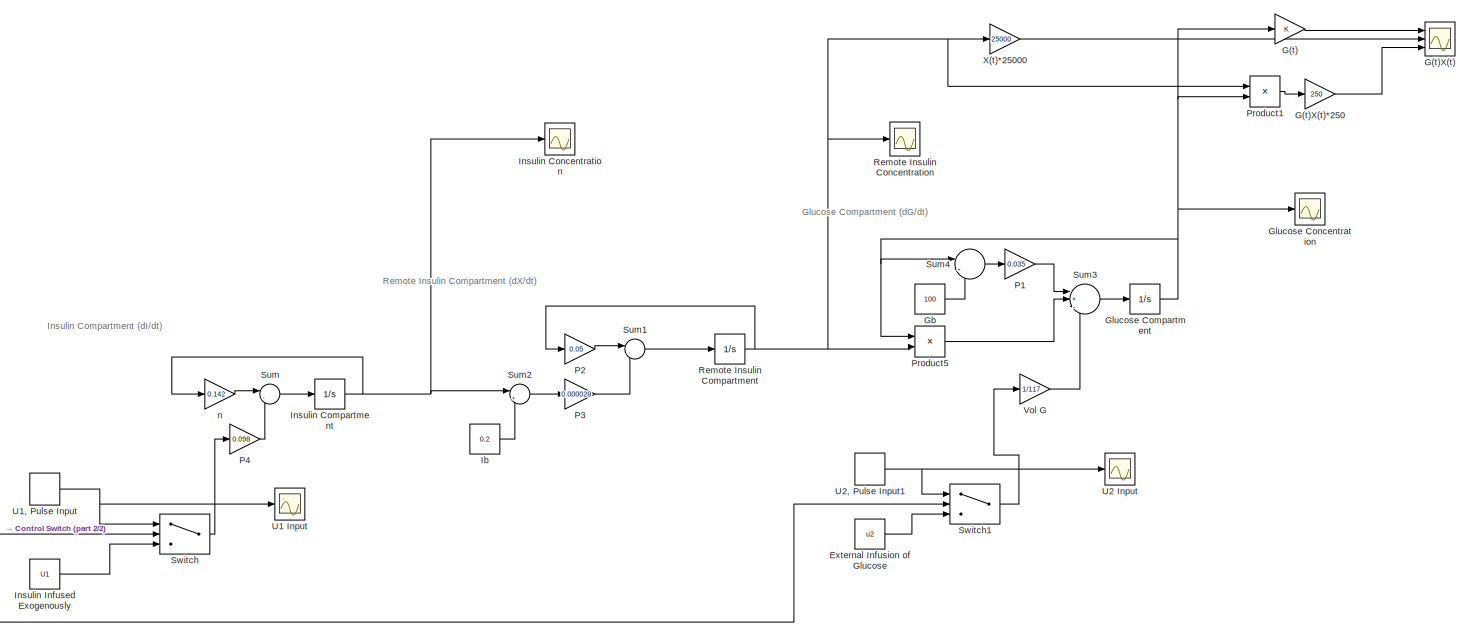
[diagram: root canvas - part 1/2, most of the canvas]
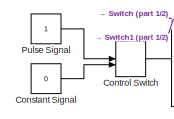
[diagram: root canvas - part 2/2, bottom left region]
MODEL slx_1c3f9f1a08b3
KIND model
CONFIG AbsTol = auto
CONFIG EnableMultiTasking = off
CONFIG FixedStep = auto
CONFIG MaxStep = auto
CONFIG MinStep = auto
CONFIG RelTol = 1e-3
CONFIG SampleTimeConstraint = Unconstrained
CONFIG SolverName = VariableStepAuto
CONFIG StartTime = 0.0
CONFIG StopTime = 1000
WORKSPACE source: mxarray member
WORKSPACE U1 = 10
WORKSPACE u2 = 100
BLOCK [Constant] Constant Signal
  Value = 0
BLOCK [ManualSwitch] Control Switch
BLOCK [Constant] External Infusion of Glucose
  Value = u2
BLOCK [Gain] G(t)
BLOCK [Scope] G(t)X(t)
  Floating = off
  NumInputPorts = 3
  Ports = [3]
  ScopeSpecificationString = Simulink.scopes.TimeScopeBlockCfg('CurrentConfiguration', extmgr.ConfigurationSet(extmgr.Configuration('Core','General UI',true),extmgr.Configuration('Core','Source UI',true),extmgr.Configuration('Sources','WiredSimulink',true,'DataLoggingVariableName','ScopeData3'),extmgr.Configuration('Visuals','Time Domain',true,'SerializedDisplays',{struct('MinYLimReal','-16.06376','MaxYLimReal','116.52899','Y...<+1615ch>
BLOCK [Gain] G(t)X(t)*250
  Gain = 250
BLOCK [Constant] Gb
  NameLocation = top
  Value = 100
BLOCK [Integrator] Glucose Compartment
  InitialCondition = 100
  Ports = [1, 1]
BLOCK [Scope] Glucose Concentration
  Floating = off
  NumInputPorts = 1
  Ports = [1]
  ScopeSpecificationString = Simulink.scopes.TimeScopeBlockCfg('CurrentConfiguration', extmgr.ConfigurationSet(extmgr.Configuration('Core','General UI',true),extmgr.Configuration('Core','Source UI',true),extmgr.Configuration('Sources','WiredSimulink',true,'DataLoggingVariableName','ScopeData1'),extmgr.Configuration('Visuals','Time Domain',true,'SerializedDisplays',{struct('MinYLimReal','99.33253','MaxYLimReal','103.99235','YL...<+1827ch>
BLOCK [Constant] Ib
  Value = 0.2
BLOCK [Integrator] Insulin Compartment
  Ports = [1, 1]
BLOCK [Scope] Insulin Concentration
  Floating = off
  NumInputPorts = 1
  Ports = [1]
  ScopeSpecificationString = Simulink.scopes.TimeScopeBlockCfg('CurrentConfiguration', extmgr.ConfigurationSet(extmgr.Configuration('Core','General UI',true),extmgr.Configuration('Core','Source UI',true),extmgr.Configuration('Sources','WiredSimulink',true,'DataLoggingVariableName','ScopeData2'),extmgr.Configuration('Visuals','Time Domain',true,'SerializedDisplays',{struct('MinYLimReal','-0.86268','MaxYLimReal','7.76408','YLab...<+1824ch>
BLOCK [Constant] Insulin Infused Exogenously
  NameLocation = top
  OutMax = 1000
  OutMin = 0
  Value = U1
BLOCK [Gain] P1
  Gain = 0.035
BLOCK [Gain] P2
  Gain = 0.05
BLOCK [Gain] P3
  Gain = 0.000028
BLOCK [Gain] P4
  Gain = 0.098
BLOCK [Product] Product1
  Ports = [2, 1]
BLOCK [Product] Product5
  Ports = [2, 1]
BLOCK [Constant] Pulse Signal
BLOCK [Integrator] Remote Insulin Compartment
  Ports = [1, 1]
BLOCK [Scope] Remote Insulin Concentration
  Floating = off
  NumInputPorts = 1
  Ports = [1]
  ScopeSpecificationString = Simulink.scopes.TimeScopeBlockCfg('CurrentConfiguration', extmgr.ConfigurationSet(extmgr.Configuration('Core','General UI',true),extmgr.Configuration('Core','Source UI',true),extmgr.Configuration('Sources','WiredSimulink',true,'DataLoggingVariableName','ScopeData3'),extmgr.Configuration('Visuals','Time Domain',true,'SerializedDisplays',{struct('MinYLimReal','-0.00047','MaxYLimReal','0.00422','YLab...<+1521ch>
BLOCK [Sum] Sum
  Inputs = |-+
  Ports = [2, 1]
BLOCK [Sum] Sum1
  Inputs = |-+
  Ports = [2, 1]
BLOCK [Sum] Sum2
  Inputs = |+-
  Ports = [2, 1]
BLOCK [Sum] Sum3
  Inputs = |+-+
  Ports = [3, 1]
BLOCK [Sum] Sum4
  Inputs = |-+
  Ports = [2, 1]
BLOCK [Switch] Switch
  Criteria = u2 > Threshold
  InputSameDT = off
  SaturateOnIntegerOverflow = off
BLOCK [Switch] Switch1
  Criteria = u2 > Threshold
  InputSameDT = off
  SaturateOnIntegerOverflow = off
BLOCK [Scope] U1 Input
  Floating = off
  NumInputPorts = 1
  Ports = [1]
  ScopeSpecificationString = Simulink.scopes.TimeScopeBlockCfg('CurrentConfiguration', extmgr.ConfigurationSet(extmgr.Configuration('Core','General UI',true),extmgr.Configuration('Core','Source UI',true),extmgr.Configuration('Sources','WiredSimulink',true,'DataLoggingVariableName','ScopeData1'),extmgr.Configuration('Visuals','Time Domain',true,'SerializedDisplays',{struct('MinYLimReal','-1.25','MaxYLimReal','11.25','YLabelRea...<+1766ch>
BLOCK [DiscretePulseGenerator] U1, Pulse Input
  Amplitude = 10
  Period = 1000
  Ports = [0, 1]
  PulseType = Time based
  PulseWidth = .5
BLOCK [Scope] U2 Input
  Floating = off
  NumInputPorts = 1
  Ports = [1]
  ScopeSpecificationString = Simulink.scopes.TimeScopeBlockCfg('CurrentConfiguration', extmgr.ConfigurationSet(extmgr.Configuration('Core','General UI',true),extmgr.Configuration('Core','Source UI',true),extmgr.Configuration('Sources','WiredSimulink',true,'DataLoggingVariableName','ScopeData2'),extmgr.Configuration('Visuals','Time Domain',true,'SerializedDisplays',{struct('MinYLimReal','-12.5','MaxYLimReal','112.5','YLabelRea...<+1797ch>
BLOCK [DiscretePulseGenerator] U2, Pulse Input1
  Amplitude = 100
  Period = 1000
  PhaseDelay = 10
  Ports = [0, 1]
  PulseType = Time based
  PulseWidth = .5
BLOCK [Gain] Vol G
  Gain = 1/117
BLOCK [Gain] X(t)*25000
  Gain = 25000
BLOCK [Gain] n
  Gain = 0.142
  NameLocation = top
ANNOTATION (root): Glucose Compartment (dG/dt)
ANNOTATION (root): Insulin Compartment (dI/dt)
ANNOTATION (root): Remote Insulin Compartment (dX/dt)
LINE Constant Signal:1 -> Control Switch:2
NET Control Switch:1 -> Switch1:2, Switch:2
LINE External Infusion of Glucose:1 -> Switch1:3
LINE G(t):1 -> G(t)X(t):1
LINE G(t)X(t)*250:1 -> G(t)X(t):3
LINE Gb:1 -> Sum4:2
NET Glucose Compartment:1 -> G(t):1, Glucose Concentration:1, Product1:2, Product5:1, Sum4:1
LINE Ib:1 -> Sum2:2
NET Insulin Compartment:1 -> Insulin Concentration:1, Sum2:1, n:1
LINE Insulin Infused Exogenously:1 -> Switch:3
LINE P1:1 -> Sum3:1
LINE P2:1 -> Sum1:1
LINE P3:1 -> Sum1:2
LINE P4:1 -> Sum:2
LINE Product1:1 -> G(t)X(t)*250:1
LINE Product5:1 -> Sum3:2
LINE Pulse Signal:1 -> Control Switch:1
NET Remote Insulin Compartment:1 -> P2:1, Product1:1, Product5:2, Remote Insulin Concentration:1, X(t)*25000:1
LINE Sum1:1 -> Remote Insulin Compartment:1
LINE Sum2:1 -> P3:1
LINE Sum3:1 -> Glucose Compartment:1
LINE Sum4:1 -> P1:1
LINE Sum:1 -> Insulin Compartment:1
LINE Switch1:1 -> Vol G:1
LINE Switch:1 -> P4:1
NET U1, Pulse Input:1 -> Switch:1, U1 Input:1
NET U2, Pulse Input1:1 -> Switch1:1, U2 Input:1
LINE Vol G:1 -> Sum3:3
LINE X(t)*25000:1 -> G(t)X(t):2
LINE n:1 -> Sum:1
note: NET lines group one-source signal fan-out (src -> all destinations, sorted); 1:1 wires keep LINE
